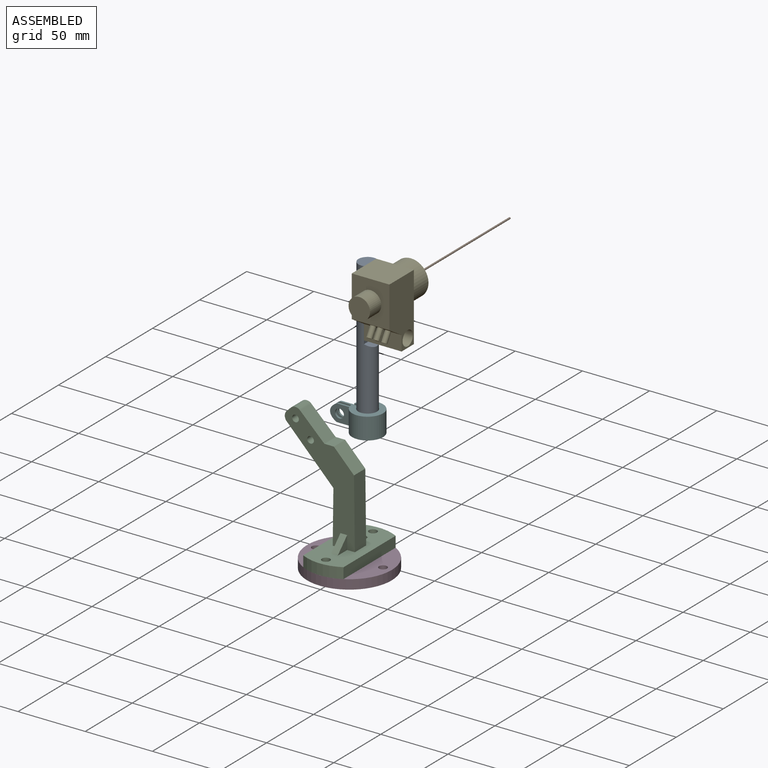
[diagram: assembled view]
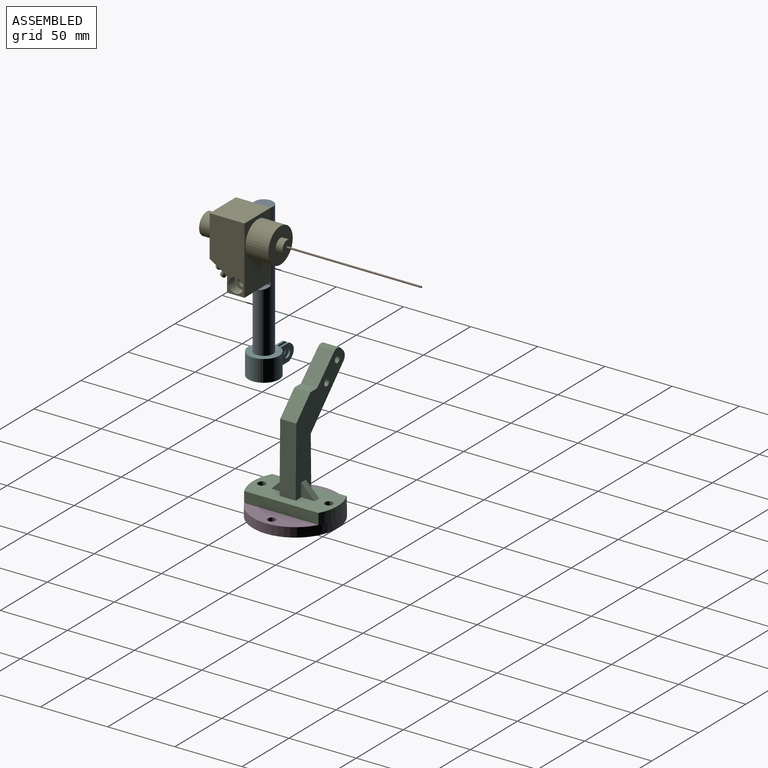
[diagram: assembled view, second angle]
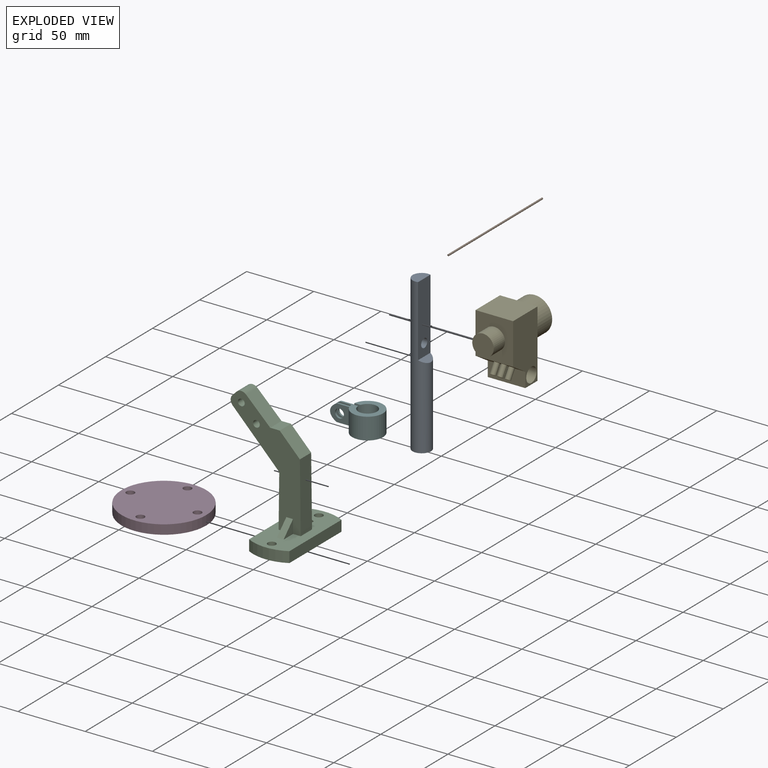
[diagram: exploded view]
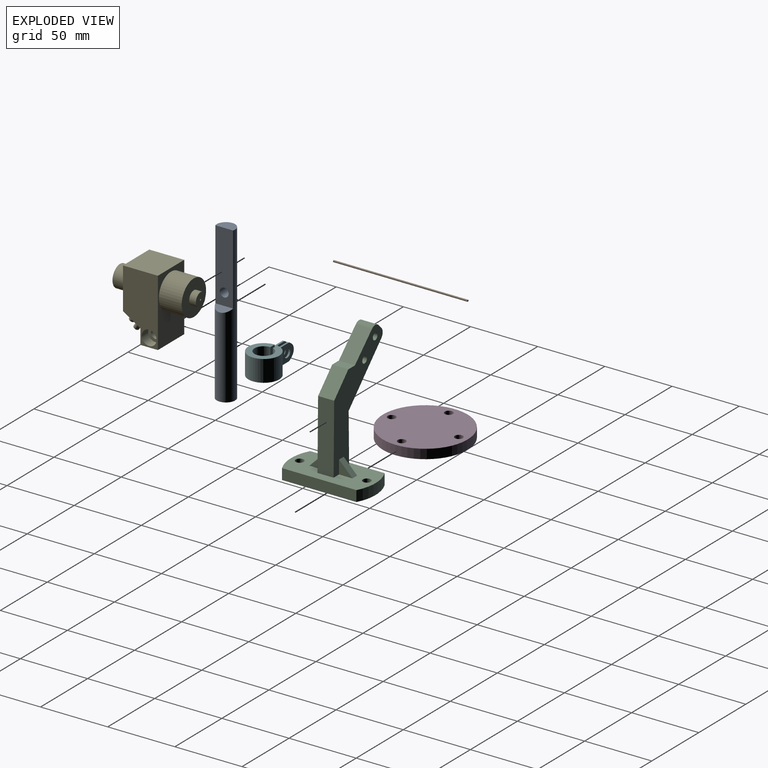
[diagram: exploded view, second angle]
ASSEMBLY  parts=6 mates=4
PART A: 6 faces, bbox 13.7x115x13.7 mm
  f0: cylinder r=6.85mm len=115mm, axis (0,1,0), area 3952.5mm2, adj f1,f2,f3,f4,f5
  f1: plane 13.7x8.7mm, normal (0,-1,0), area 98.7mm2, adj f0,f4
  f2: plane 13.7x13.7mm, normal (0,1,0), area 147.4mm2, adj f0
  f3: plane 13.19x5mm, normal (-0.45,-0.89,0), area 54.4mm2, adj f0,f4
  f4: plane 52.5x13.19mm, normal (-1,0,0), area 658.3mm2, adj f0,f1,f3,f5
  f5: cylinder r=3.3mm len=8.7mm, axis (-1,0,0), area 171.8mm2, adj f0,f4
PART B: 3 faces, bbox 100x1.3x1.3 mm
  f0: cylinder r=0.65mm len=100mm, axis (-1,0,0), area 408.4mm2, adj f1,f2
  f1: plane 1.3x1.3mm, normal (1,0,0), area 1.3mm2, adj f0
  f2: plane 1.3x1.3mm, normal (-1,0,0), area 1.3mm2, adj f0
PART C: 27 faces, bbox 58.9x63x93.9 mm
  f0: plane 18.06x17.61mm, normal (0.7,0,0.72), area 302.7mm2, adj f2,f4,f22,f25
  f1: plane 38.9x12mm, normal (-1,0,0.01), area 466.8mm2, adj f2,f4,f5,f19
  f2: plane 85.93x52.17mm, normal (0,-1,0), area 1546.7mm2, adj f0,f1,f3,f5,f13,f14,f15,f19
  f3: plane 51.51x12mm, normal (1,0,0.01), area 618.2mm2, adj f2,f4,f5,f26
  f4: plane 85.93x52.17mm, normal (0,1,0), area 1546.7mm2, adj f0,f1,f3,f5,f16,f17,f18,f19
  f5: plane 63x30mm, normal (0,0,1), area 1461.6mm2, adj f1,f2,f3,f4,f6,f7,f8,f9
  f6: plane 55.4x8mm, normal (1,0,0), area 443.2mm2, adj f5,f7,f11,f12
  f7: cylinder r=31.5mm len=30mm, axis (0,0,-1), area 250.1mm2, adj f5,f6,f8,f12
  f8: plane 55.4x8mm, normal (-1,0,0), area 443.2mm2, adj f5,f7,f11,f12
  f9: cylinder r=3mm len=8mm, axis (0,0,-1), area 150.8mm2, adj f5,f12
  f10: cylinder r=3mm len=8mm, axis (0,0,-1), area 150.8mm2, adj f5,f12
  f11: cylinder r=31.5mm len=30mm, axis (0,0,-1), area 250.1mm2, adj f5,f6,f8,f12
  f12: plane 63x30mm, normal (0,0,-1), area 1759.4mm2, adj f6,f7,f8,f9,f10,f11
  f13: plane 10x10mm, normal (-1,0,0), area 50mm2, adj f2,f5,f15
  f14: plane 10x10mm, normal (1,0,0), area 50mm2, adj f2,f5,f15
  f15: plane 10x10mm, normal (0,-0.71,0.71), area 70.7mm2, adj f2,f5,f13,f14
  f16: plane 10x10mm, normal (1,0,0), area 50mm2, adj f4,f5,f18
  f17: plane 10x10mm, normal (-1,0,0), area 50mm2, adj f4,f5,f18
  f18: plane 10x10mm, normal (0,0.71,0.71), area 70.7mm2, adj f4,f5,f16,f17
  f19: plane 35.63x34.76mm, normal (-0.72,0,-0.7), area 597.3mm2, adj f1,f2,f4,f24
  f20: cylinder r=2.5mm len=12mm, axis (0,-1,0), area 188.5mm2, adj f2,f4
  f21: cylinder r=2.5mm len=12mm, axis (0,-1,0), area 188.5mm2, adj f2,f4
  f22: cylinder r=5mm len=12mm, axis (0,-1,0), area 93.5mm2, adj f0,f2,f4,f23
  f23: plane 12x2.92mm, normal (-0.71,0,0.71), area 49.5mm2, adj f2,f4,f22,f24
  f24: cylinder r=5mm len=12mm, axis (0,1,0), area 93.5mm2, adj f2,f4,f19,f23
  f25: plane 12x7.06mm, normal (0,0,1), area 84.7mm2, adj f0,f2,f4,f26
  f26: plane 15.39x15.01mm, normal (0.72,0,0.7), area 258mm2, adj f2,f3,f4,f25
PART D: 9 faces, bbox 63x63x12 mm
  f0: plane 63x63mm, normal (0,0,-1), area 2224.8mm2, adj f2,f3,f4,f5,f6,f7
  f1: plane 63x63mm, normal (0,0,1), area 3004.1mm2, adj f2,f3,f4,f5,f6
  f2: cylinder r=31.5mm len=63mm, axis (0,0,1), area 1385.4mm2, adj f0,f1
  f3: cylinder r=3mm len=7mm, axis (0,0,1), area 131.9mm2, adj f0,f1
  f4: cylinder r=3mm len=7mm, axis (0,0,1), area 131.9mm2, adj f0,f1
  f5: cylinder r=3mm len=7mm, axis (0,0,1), area 131.9mm2, adj f0,f1
  f6: cylinder r=3mm len=7mm, axis (0,0,1), area 131.9mm2, adj f0,f1
  f7: cylinder r=15.75mm len=31.5mm, axis (0,0,1), area 494.8mm2, adj f0,f8
  f8: plane 31.5x31.5mm, normal (0,0,-1), area 779.3mm2, adj f7
PART E: 27 faces, bbox 60x28x50 mm
  f0: plane 30.74x28mm, normal (-1,0,0), area 659.5mm2, adj f1,f2,f5,f8,f18
  f1: plane 50x26mm, normal (0,-1,0), area 1007.8mm2, adj f0,f5,f6,f7,f16,f17,f18
  f2: plane 50x26mm, normal (0,1,0), area 1068.6mm2, adj f0,f3,f5,f6,f7,f17,f18
  f3: cylinder r=3.3mm len=21.2mm, axis (0,-1,0), area 439.6mm2, adj f2,f15
  f4: cylinder r=13mm len=26mm, axis (-1,0,0), area 1388.6mm2, adj f7,f10
  f5: plane 28x26mm, normal (0,0,1), area 728mm2, adj f0,f1,f2,f7
  f6: plane 28x13mm, normal (0,0,-1), area 364mm2, adj f1,f2,f7,f17
  f7: plane 50x28mm, normal (1,0,0), area 869.1mm2, adj f1,f2,f4,f5,f6
  f8: cylinder r=8mm len=16mm, axis (1,0,0), area 603.2mm2, adj f0,f9
  f9: plane 16x16mm, normal (-1,0,0), area 201.1mm2, adj f8
  f10: plane 26x26mm, normal (1,0,0), area 452.4mm2, adj f4,f11
  f11: cylinder r=5mm len=10mm, axis (1,0,0), area 157.1mm2, adj f10,f14
  f12: plane 1.3x1.3mm, normal (1,0,0), area 1.3mm2, adj f13
  f13: cylinder r=0.65mm len=10mm, axis (1,0,0), area 40.8mm2, adj f12,f14
  f14: plane 10x10mm, normal (1,0,0), area 77.2mm2, adj f11,f13
  f15: plane 11x11mm, normal (0,-1,0), area 60.8mm2, adj f3,f16
  f16: cylinder r=5.5mm len=11mm, axis (0,-1,0), area 235mm2, adj f1,f15
  f17: plane 28x11.08mm, normal (-1,0,0), area 310.1mm2, adj f1,f2,f6,f18
  f18: plane 28x13mm, normal (-0.53,0,-0.85), area 379.9mm2, adj f0,f1,f2,f17,f19,f21,f23,f25
  f19: cylinder r=2mm len=8.9mm, axis (0.53,0,0.85), area 100.5mm2, adj f18,f20
  f20: plane 4x3.38mm, normal (-0.53,0,-0.85), area 12.6mm2, adj f19
  f21: cylinder r=2mm len=8.9mm, axis (0.53,0,0.85), area 100.5mm2, adj f18,f22
  f22: plane 4x3.38mm, normal (-0.53,0,-0.85), area 12.6mm2, adj f21
  f23: cylinder r=2mm len=8.9mm, axis (0.53,0,0.85), area 100.5mm2, adj f18,f24
  f24: plane 4x3.38mm, normal (-0.53,0,-0.85), area 12.6mm2, adj f23
  f25: cylinder r=2mm len=8.9mm, axis (0.53,0,0.85), area 100.5mm2, adj f18,f26
  f26: plane 4x3.38mm, normal (-0.53,0,-0.85), area 12.6mm2, adj f25
PART F: 16 faces, bbox 40.3x23x16 mm
  f0: cylinder r=11.5mm len=23mm, axis (0,0,-1), area 1088.1mm2, adj f2,f3,f4,f5,f6,f7,f10,f11
  f1: cylinder r=7mm len=16mm, axis (0,0,-1), area 671.3mm2, adj f2,f3,f5,f10
  f2: plane 23x23mm, normal (0,0,1), area 252.5mm2, adj f0,f1,f5,f10
  f3: plane 23x23mm, normal (0,0,-1), area 252.5mm2, adj f0,f1,f5,f10
  f4: plane 17.34x12.6mm, normal (0,1,0), area 142.9mm2, adj f0,f6,f7,f8,f9
  f5: plane 21.75x16mm, normal (0,-1,0), area 213.8mm2, adj f0,f1,f2,f3,f6,f7,f8,f9
  f6: plane 10.59x1.4mm, normal (0,0,-1), area 14.7mm2, adj f0,f4,f5,f8
  f7: plane 10.59x1.4mm, normal (0,0,1), area 14.7mm2, adj f0,f4,f5,f8
  f8: extruded ~12.6x5.01mm, area 23.7mm2, adj f4,f5,f6,f7
  f9: cylinder r=3.3mm len=6.6mm, axis (0,-1,0), area 29mm2, adj f4,f5
  f10: plane 22.04x16mm, normal (0,1,0), area 217.9mm2, adj f0,f1,f2,f3,f12,f13,f14,f15
  f11: plane 17.77x12.6mm, normal (0,-1,0), area 148.3mm2, adj f0,f12,f13,f14,f15
  f12: plane 11.01x1.4mm, normal (0,0,1), area 15.2mm2, adj f0,f10,f11,f13
  f13: extruded ~12.6x5.01mm, area 23.7mm2, adj f10,f11,f12,f14
  f14: plane 11.01x1.4mm, normal (0,0,-1), area 15.2mm2, adj f0,f10,f11,f13
  f15: cylinder r=3.3mm len=6.6mm, axis (0,1,0), area 29mm2, adj f10,f11
PLACE A rot(axis=(0,-0.71,0.71),180deg) t=(-105.79,37.16,194.34)mm
PLACE B rot(axis=(0,0,1),90deg) t=(-89.94,17.66,199.34)mm
PLACE C t=(-125.92,46.56,41.34)mm
PLACE D t=(-125.92,46.56,41.34)mm fixed
PLACE E rot(axis=(0,0,1),90deg) t=(-89.94,17.66,199.34)mm
PLACE F rot(axis=(-1,0,0),180deg) t=(-105.79,37.16,150.34)mm
MATE fastened B.f0 <-> E.f4  axis (0,-1,0) through (-89.94,65.66,233.84)mm
MATE fastened A.f5 <-> E.f3  axis (1,0,0) through (-103.94,37.16,205.84)mm
MATE fastened C.f10 <-> D.f3  axis (0,0,-1) through (-125.92,71.56,41.34)mm
MATE fastened F.f1 <-> A.f0  axis (0,0,-1) through (-105.79,37.16,134.34)mm
